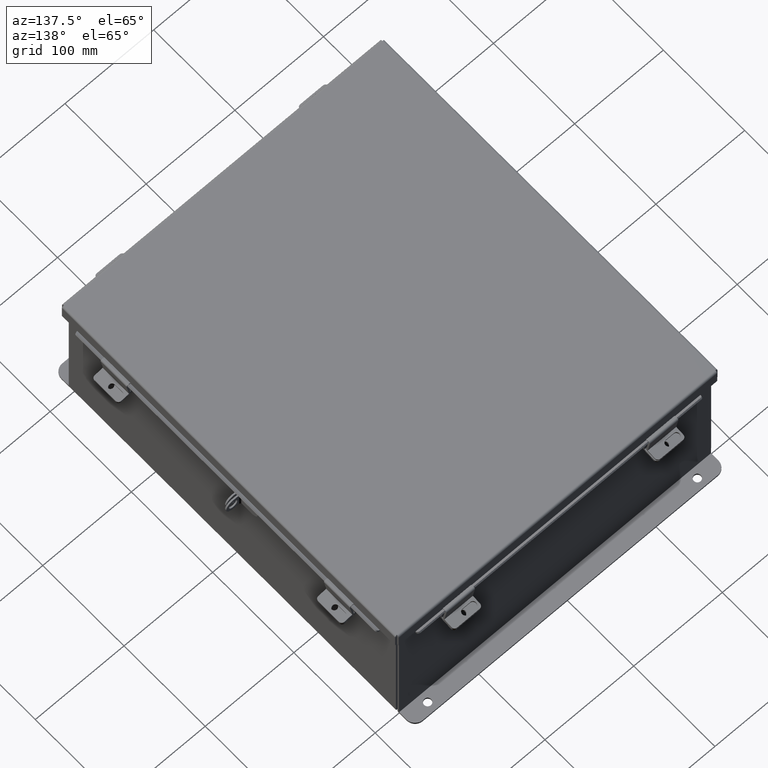
[diagram: clean part render]
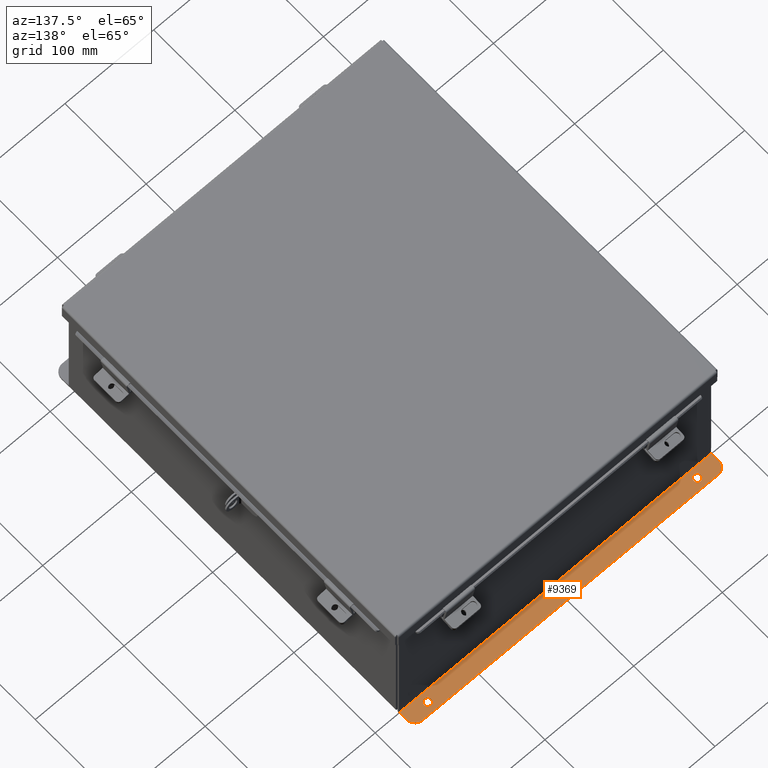
[diagram: same view with one face highlighted and labeled with its STEP entity id]
A machine part, auxiliary view. The second image highlights one B-rep face of the part: STEP entity #9369.
In plain terms, the highlighted planar face has unit normal (0, 0, 1).
Its self-contained STEP definition (entity closure, byte-faithful):
#88 = CARTESIAN_POINT ( 'NONE',  ( 6.925299999999998200, 0.01300000000000010700, -3.112299999999999400 ) ) ;
#536 = CARTESIAN_POINT ( 'NONE',  ( -5.987800000000000000, 0.3627999999999997300, -3.112300000000000700 ) ) ;
#922 = CIRCLE ( 'NONE', #3723, 0.1560000000000001700 ) ;
#1395 = AXIS2_PLACEMENT_3D ( 'NONE', #2584, #13413, #4117 ) ;
#2100 = DIRECTION ( 'NONE',  ( 0.0000000000000000000, -1.000000000000000000, 3.502369222646487400E-015 ) ) ;
#2283 = CIRCLE ( 'NONE', #14454, 0.1560000000000001700 ) ;
#2420 = LINE ( 'NONE', #88, #18454 ) ;
#2487 = VERTEX_POINT ( 'NONE', #7124 ) ;
#2584 = CARTESIAN_POINT ( 'NONE',  ( 5.987799999999998200, 0.3627999999999997300, -3.112300000000000700 ) ) ;
#2608 = FACE_OUTER_BOUND ( 'NONE', #11916, .T. ) ;
#2613 = CARTESIAN_POINT ( 'NONE',  ( 6.550299999999998200, 0.3627999999999997300, -3.112300000000000700 ) ) ;
#2752 = ORIENTED_EDGE ( 'NONE', *, *, #5469, .T. ) ;
#2992 = CIRCLE ( 'NONE', #1395, 0.1560000000000001700 ) ;
#3243 = EDGE_CURVE ( 'NONE', #18441, #10893, #2420, .T. ) ;
#3344 = CARTESIAN_POINT ( 'NONE',  ( 6.925299999999998200, 0.7378000000000000100, -3.112300000000002100 ) ) ;
#3524 = DIRECTION ( 'NONE',  ( 0.0000000000000000000, -1.000000000000000000, 4.370956789862820400E-015 ) ) ;
#3557 = CARTESIAN_POINT ( 'NONE',  ( -5.987800000000000000, 0.3627999999999997300, -3.112300000000000700 ) ) ;
#3723 = AXIS2_PLACEMENT_3D ( 'NONE', #536, #11314, #2100 ) ;
#4117 = DIRECTION ( 'NONE',  ( 0.0000000000000000000, -1.000000000000000000, 3.502369222646487400E-015 ) ) ;
#4154 = DIRECTION ( 'NONE',  ( 0.0000000000000000000, -1.000000000000000000, 4.370956789862820400E-015 ) ) ;
#4750 = CARTESIAN_POINT ( 'NONE',  ( 6.925299999999998200, 0.01300000000000010700, -3.112299999999999400 ) ) ;
#5132 = CARTESIAN_POINT ( 'NONE',  ( 5.987799999999998200, 0.5187999999999999300, -3.112300000000001200 ) ) ;
#5173 = VECTOR ( 'NONE', #18934, 39.37007874015748100 ) ;
#5469 = EDGE_CURVE ( 'NONE', #19013, #10743, #17346, .T. ) ;
#5855 = CARTESIAN_POINT ( 'NONE',  ( -6.550299999999998200, 0.3628000000000008400, -3.112300000000000700 ) ) ;
#5916 = EDGE_CURVE ( 'NONE', #9750, #8352, #2283, .T. ) ;
#6122 = VECTOR ( 'NONE', #12386, 39.37007874015748100 ) ;
#6214 = DIRECTION ( 'NONE',  ( -1.000000000000000000, 0.0000000000000000000, 0.0000000000000000000 ) ) ;
#6829 = EDGE_LOOP ( 'NONE', ( #18780, #19258 ) ) ;
#6864 = CARTESIAN_POINT ( 'NONE',  ( 6.925299999999998200, 0.3627999999999997300, -3.112300000000000700 ) ) ;
#7124 = CARTESIAN_POINT ( 'NONE',  ( 6.550299999999998200, 0.7378000000000000100, -3.112300000000002100 ) ) ;
#7633 = DIRECTION ( 'NONE',  ( 0.0000000000000000000, 3.702694488566362300E-015, 1.000000000000000000 ) ) ;
#7792 = VERTEX_POINT ( 'NONE', #6864 ) ;
#7955 = VERTEX_POINT ( 'NONE', #5132 ) ;
#8276 = CARTESIAN_POINT ( 'NONE',  ( -6.925300000000000900, 0.3628000000000008400, -3.112300000000000700 ) ) ;
#8352 = VERTEX_POINT ( 'NONE', #16506 ) ;
#8482 = CARTESIAN_POINT ( 'NONE',  ( -5.987800000000000000, 0.5187999999999999300, -3.112300000000001200 ) ) ;
#8582 = DIRECTION ( 'NONE',  ( -0.0000000000000000000, -3.702694488566362300E-015, -1.000000000000000000 ) ) ;
#8728 = CARTESIAN_POINT ( 'NONE',  ( -6.925299999999999100, 0.01300000000000010700, -3.112299999999999400 ) ) ;
#9089 = EDGE_CURVE ( 'NONE', #11402, #7955, #11553, .T. ) ;
#9178 = EDGE_CURVE ( 'NONE', #7792, #2487, #13770, .T. ) ;
#9369 = ADVANCED_FACE ( 'NONE', ( #10319, #14990, #2608 ), #16964, .T. ) ;
#9750 = VERTEX_POINT ( 'NONE', #8482 ) ;
#10106 = LINE ( 'NONE', #3344, #17432 ) ;
#10231 = LINE ( 'NONE', #10803, #6122 ) ;
#10319 = FACE_BOUND ( 'NONE', #18355, .T. ) ;
#10743 = VERTEX_POINT ( 'NONE', #8276 ) ;
#10803 = CARTESIAN_POINT ( 'NONE',  ( 6.925299999999998200, 0.0000000000000000000, -3.112299999999999400 ) ) ;
#10893 = VERTEX_POINT ( 'NONE', #8728 ) ;
#10931 = ORIENTED_EDGE ( 'NONE', *, *, #11949, .F. ) ;
#11314 = DIRECTION ( 'NONE',  ( -0.0000000000000000000, -3.702694488566362300E-015, -1.000000000000000000 ) ) ;
#11367 = DIRECTION ( 'NONE',  ( 0.0000000000000000000, -1.000000000000000000, 3.502369222646487400E-015 ) ) ;
#11402 = VERTEX_POINT ( 'NONE', #19257 ) ;
#11553 = CIRCLE ( 'NONE', #16173, 0.1560000000000001700 ) ;
#11916 = EDGE_LOOP ( 'NONE', ( #16805, #16328, #18293, #2752, #10931, #16768 ) ) ;
#11949 = EDGE_CURVE ( 'NONE', #10893, #10743, #18588, .T. ) ;
#12386 = DIRECTION ( 'NONE',  ( -0.0000000000000000000, -1.000000000000000000, 3.702694488566362300E-015 ) ) ;
#12857 = EDGE_CURVE ( 'NONE', #7955, #11402, #2992, .T. ) ;
#13413 = DIRECTION ( 'NONE',  ( -0.0000000000000000000, -3.702694488566362300E-015, -1.000000000000000000 ) ) ;
#13459 = DIRECTION ( 'NONE',  ( 0.0000000000000000000, 3.702694488566362300E-015, 1.000000000000000000 ) ) ;
#13770 = CIRCLE ( 'NONE', #15918, 0.3750000000000000600 ) ;
#14282 = CARTESIAN_POINT ( 'NONE',  ( -6.925300000000000900, 0.7378000000000000100, -3.112300000000002100 ) ) ;
#14454 = AXIS2_PLACEMENT_3D ( 'NONE', #3557, #19920, #11367 ) ;
#14916 = ORIENTED_EDGE ( 'NONE', *, *, #17868, .T. ) ;
#14990 = FACE_BOUND ( 'NONE', #6829, .T. ) ;
#15185 = AXIS2_PLACEMENT_3D ( 'NONE', #20016, #7633, #18573 ) ;
#15259 = CARTESIAN_POINT ( 'NONE',  ( -6.550299999999998200, 0.7378000000000000100, -3.112300000000002100 ) ) ;
#15760 = DIRECTION ( 'NONE',  ( 0.0000000000000000000, 3.702694488566362300E-015, 1.000000000000000000 ) ) ;
#15918 = AXIS2_PLACEMENT_3D ( 'NONE', #2613, #13459, #4154 ) ;
#16173 = AXIS2_PLACEMENT_3D ( 'NONE', #17932, #8582, #19527 ) ;
#16328 = ORIENTED_EDGE ( 'NONE', *, *, #9178, .T. ) ;
#16464 = AXIS2_PLACEMENT_3D ( 'NONE', #5855, #15760, #3524 ) ;
#16506 = CARTESIAN_POINT ( 'NONE',  ( -5.987800000000000000, 0.2067999999999996000, -3.112299999999999800 ) ) ;
#16768 = ORIENTED_EDGE ( 'NONE', *, *, #3243, .F. ) ;
#16805 = ORIENTED_EDGE ( 'NONE', *, *, #19108, .F. ) ;
#16964 = PLANE ( 'NONE',  #15185 ) ;
#17308 = DIRECTION ( 'NONE',  ( 1.000000000000000000, -0.0000000000000000000, -0.0000000000000000000 ) ) ;
#17346 = CIRCLE ( 'NONE', #16464, 0.3750000000000000600 ) ;
#17432 = VECTOR ( 'NONE', #17308, 39.37007874015748100 ) ;
#17451 = EDGE_CURVE ( 'NONE', #19013, #2487, #10106, .T. ) ;
#17868 = EDGE_CURVE ( 'NONE', #8352, #9750, #922, .T. ) ;
#17932 = CARTESIAN_POINT ( 'NONE',  ( 5.987799999999998200, 0.3627999999999997300, -3.112300000000000700 ) ) ;
#18293 = ORIENTED_EDGE ( 'NONE', *, *, #17451, .F. ) ;
#18355 = EDGE_LOOP ( 'NONE', ( #19637, #14916 ) ) ;
#18441 = VERTEX_POINT ( 'NONE', #4750 ) ;
#18454 = VECTOR ( 'NONE', #6214, 39.37007874015748100 ) ;
#18573 = DIRECTION ( 'NONE',  ( 0.0000000000000000000, -1.000000000000000000, 3.702694488566362300E-015 ) ) ;
#18588 = LINE ( 'NONE', #14282, #5173 ) ;
#18780 = ORIENTED_EDGE ( 'NONE', *, *, #12857, .T. ) ;
#18934 = DIRECTION ( 'NONE',  ( -0.0000000000000000000, 1.000000000000000000, -3.702694488566362300E-015 ) ) ;
#19013 = VERTEX_POINT ( 'NONE', #15259 ) ;
#19108 = EDGE_CURVE ( 'NONE', #7792, #18441, #10231, .T. ) ;
#19257 = CARTESIAN_POINT ( 'NONE',  ( 5.987799999999998200, 0.2067999999999996000, -3.112299999999999800 ) ) ;
#19258 = ORIENTED_EDGE ( 'NONE', *, *, #9089, .T. ) ;
#19527 = DIRECTION ( 'NONE',  ( 0.0000000000000000000, -1.000000000000000000, 3.502369222646487400E-015 ) ) ;
#19637 = ORIENTED_EDGE ( 'NONE', *, *, #5916, .T. ) ;
#19920 = DIRECTION ( 'NONE',  ( -0.0000000000000000000, -3.702694488566362300E-015, -1.000000000000000000 ) ) ;
#20016 = CARTESIAN_POINT ( 'NONE',  ( 0.0000000000000000000, -1.092739197465705300E-014, -3.112299999999999400 ) ) ;